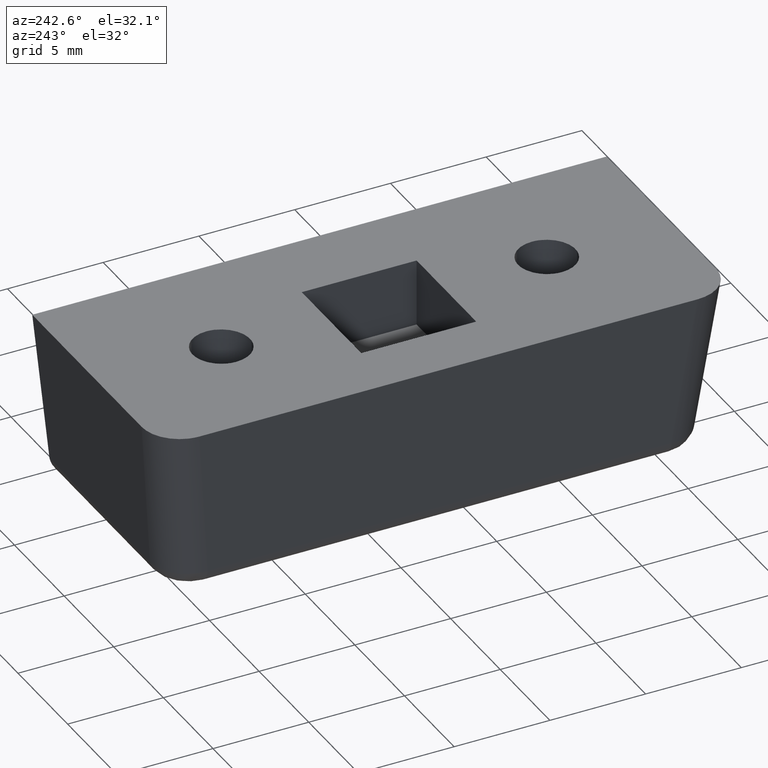
[diagram: clean part render]
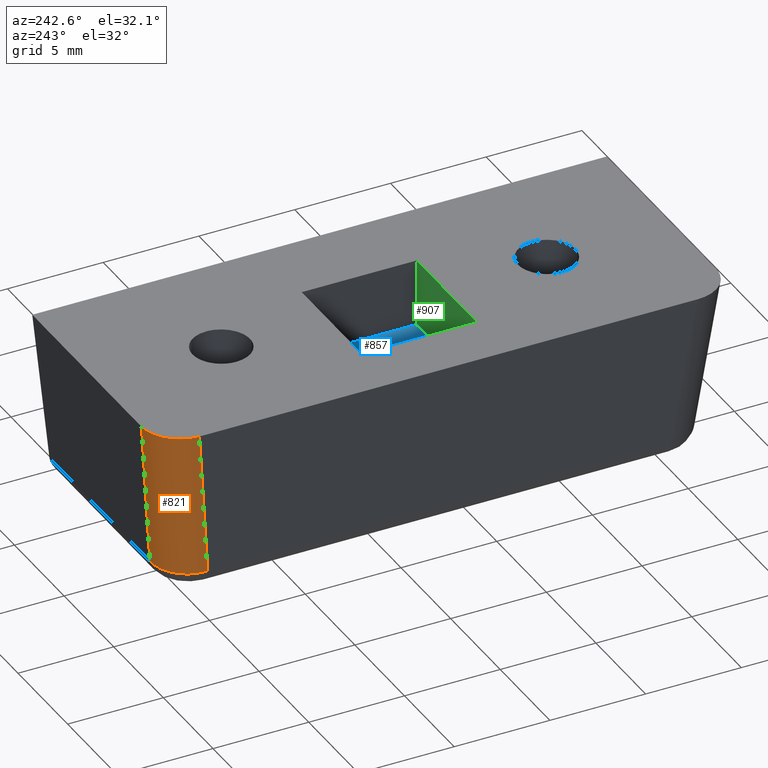
[diagram: same view with three faces highlighted in distinct colors, each labeled with its STEP entity id]
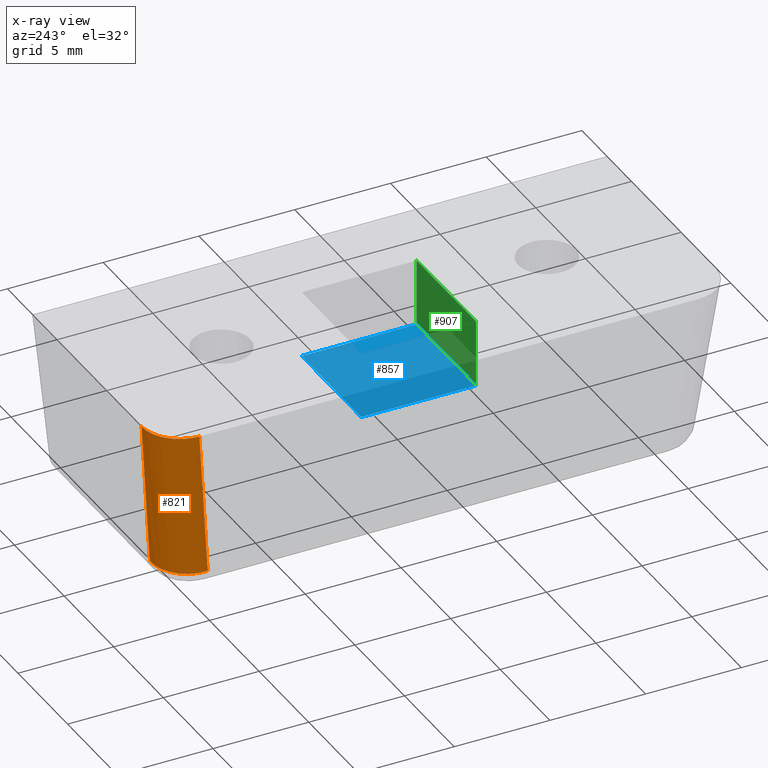
[diagram: x-ray of the same camera — body ghosted, the three highlighted faces saturated]
A machine part, auxiliary view with three faces highlighted in distinct colors.
The next image is the same camera in x-ray (body ghosted, the three faces saturated) — at least one of them is partly hidden behind the body in this view.
Their STEP definitions:

[orange] entity #821 — the highlighted face is a freeform B-spline surface patch.
#555=CARTESIAN_POINT('',(-188.098840734183990,4.111073453119674,30.389568469517549));
#556=VERTEX_POINT('',#555);
#572=CARTESIAN_POINT('',(-186.111073581873510,6.098840931261011,30.389568486864100));
#573=VERTEX_POINT('',#572);
#574=CARTESIAN_POINT('',(-186.111073581873510,6.098840931261007,30.389568486864100));
#575=CARTESIAN_POINT('',(-188.086866874126510,6.086866429303731,30.281797956467237));
#576=CARTESIAN_POINT('',(-188.098840734183990,4.111073453119674,30.389568469517549));
#584=(BOUNDED_CURVE()B_SPLINE_CURVE(2,(#574,#575,#576),.UNSPECIFIED.,.F.,.U.)CURVE()GEOMETRIC_REPRESENTATION_ITEM()QUASI_UNIFORM_CURVE()RATIONAL_B_SPLINE_CURVE((1.0,0.711405284315790,1.0))REPRESENTATION_ITEM(''));
#585=EDGE_CURVE('',#573,#556,#584,.T.);
#777=CARTESIAN_POINT('',(-186.992928063823710,7.032686419561122,38.800384987841937));
#778=CARTESIAN_POINT('',(-186.035688718804610,6.075447070058088,30.185229820438650));
#779=CARTESIAN_POINT('',(-189.123975722734800,7.062497336816977,38.560289620077825));
#780=CARTESIAN_POINT('',(-188.166736377715750,6.105257987313943,29.945134452674523));
#781=CARTESIAN_POINT('',(-189.030988865132710,4.934040512166988,38.807116666558123));
#782=CARTESIAN_POINT('',(-188.073749520113610,3.976801162663955,30.191961499154829));
#790=(BOUNDED_SURFACE()B_SPLINE_SURFACE(1,2,((#777,#779,#781),(#778,#780,#782)),.UNSPECIFIED.,.F.,.F.,.U.)B_SPLINE_SURFACE_WITH_KNOTS((2,2),(3,3),(0.0,8.720866521987663),(0.0,3.478498999687471),.UNSPECIFIED.)GEOMETRIC_REPRESENTATION_ITEM()RATIONAL_B_SPLINE_SURFACE(((1.0,0.681998360062498,1.0),(1.0,0.681998360062498,1.0)))REPRESENTATION_ITEM('')SURFACE());
#791=CARTESIAN_POINT('',(-187.012232527777510,6.999999881386110,38.500000000000000));
#792=VERTEX_POINT('',#791);
#793=CARTESIAN_POINT('',(-186.111073581873510,6.098840931261011,30.389568486864100));
#794=CARTESIAN_POINT('',(-187.012232527777510,6.999999881386110,38.500000000000000));
#795=QUASI_UNIFORM_CURVE('',1,(#793,#794),.UNSPECIFIED.,.F.,.U.);
#796=EDGE_CURVE('',#573,#792,#795,.T.);
#797=ORIENTED_EDGE('',*,*,#796,.F.);
#798=ORIENTED_EDGE('',*,*,#585,.T.);
#799=CARTESIAN_POINT('',(-189.0,5.012232409050130,38.500000000000000));
#800=VERTEX_POINT('',#799);
#801=CARTESIAN_POINT('',(-189.0,5.012232409050130,38.500000000000000));
#802=CARTESIAN_POINT('',(-188.098840734183990,4.111073453119674,30.389568469517549));
#803=QUASI_UNIFORM_CURVE('',1,(#801,#802),.UNSPECIFIED.,.F.,.U.);
#804=EDGE_CURVE('',#800,#556,#803,.T.);
#805=ORIENTED_EDGE('',*,*,#804,.F.);
#806=CARTESIAN_POINT('',(-187.012232527777510,6.999999881386110,38.500000000000000));
#807=CARTESIAN_POINT('',(-189.0,6.999999881385769,38.500000000000007));
#808=CARTESIAN_POINT('',(-189.0,5.012232409050130,38.500000000000000));
#816=(BOUNDED_CURVE()B_SPLINE_CURVE(2,(#806,#807,#808),.UNSPECIFIED.,.F.,.U.)CURVE()GEOMETRIC_REPRESENTATION_ITEM()QUASI_UNIFORM_CURVE()RATIONAL_B_SPLINE_CURVE((1.0,0.711405341221566,1.0))REPRESENTATION_ITEM(''));
#817=EDGE_CURVE('',#792,#800,#816,.T.);
#818=ORIENTED_EDGE('',*,*,#817,.F.);
#819=EDGE_LOOP('',(#797,#798,#805,#818));
#820=FACE_OUTER_BOUND('',#819,.T.);
#821=ADVANCED_FACE('',(#820),#790,.T.);

[blue] entity #857 — the highlighted face is a freeform B-spline surface patch.
#822=CARTESIAN_POINT('',(-186.299699988370800,-4.700300011629164,35.0));
#823=CARTESIAN_POINT('',(-179.700299850696610,-4.700300011629164,35.0));
#824=CARTESIAN_POINT('',(-186.299699988370800,-11.299700149303380,35.0));
#825=CARTESIAN_POINT('',(-179.700299850696610,-11.299700149303380,35.0));
#826=B_SPLINE_SURFACE_WITH_KNOTS('',1,1,((#822,#824),(#823,#825)),.UNSPECIFIED.,.F.,.F.,.U.,(2,2),(2,2),(0.0,6.599400137674213),(0.0,6.599400137674213),.UNSPECIFIED.);
#827=CARTESIAN_POINT('',(-186.0,-5.0,35.0));
#828=VERTEX_POINT('',#827);
#829=CARTESIAN_POINT('',(-180.0,-5.0,35.0));
#830=VERTEX_POINT('',#829);
#831=CARTESIAN_POINT('',(-186.0,-5.0,35.0));
#832=CARTESIAN_POINT('',(-180.0,-5.0,35.0));
#833=QUASI_UNIFORM_CURVE('',1,(#831,#832),.UNSPECIFIED.,.F.,.U.);
#834=EDGE_CURVE('',#828,#830,#833,.T.);
#835=ORIENTED_EDGE('',*,*,#834,.F.);
#836=CARTESIAN_POINT('',(-186.0,-11.0,35.0));
#837=VERTEX_POINT('',#836);
#838=CARTESIAN_POINT('',(-186.0,-11.0,35.0));
#839=CARTESIAN_POINT('',(-186.0,-5.0,35.0));
#840=QUASI_UNIFORM_CURVE('',1,(#838,#839),.UNSPECIFIED.,.F.,.U.);
#841=EDGE_CURVE('',#837,#828,#840,.T.);
#842=ORIENTED_EDGE('',*,*,#841,.F.);
#843=CARTESIAN_POINT('',(-180.0,-11.0,35.0));
#844=VERTEX_POINT('',#843);
#845=CARTESIAN_POINT('',(-180.0,-11.0,35.0));
#846=CARTESIAN_POINT('',(-186.0,-11.0,35.0));
#847=QUASI_UNIFORM_CURVE('',1,(#845,#846),.UNSPECIFIED.,.F.,.U.);
#848=EDGE_CURVE('',#844,#837,#847,.T.);
#849=ORIENTED_EDGE('',*,*,#848,.F.);
#850=CARTESIAN_POINT('',(-180.0,-5.0,35.0));
#851=CARTESIAN_POINT('',(-180.0,-11.0,35.0));
#852=QUASI_UNIFORM_CURVE('',1,(#850,#851),.UNSPECIFIED.,.F.,.U.);
#853=EDGE_CURVE('',#830,#844,#852,.T.);
#854=ORIENTED_EDGE('',*,*,#853,.F.);
#855=EDGE_LOOP('',(#835,#842,#849,#854));
#856=FACE_OUTER_BOUND('',#855,.T.);
#857=ADVANCED_FACE('',(#856),#826,.F.);

[green] entity #907 — the highlighted face is a freeform B-spline surface patch.
#836=CARTESIAN_POINT('',(-186.0,-11.0,35.0));
#837=VERTEX_POINT('',#836);
#843=CARTESIAN_POINT('',(-180.0,-11.0,35.0));
#844=VERTEX_POINT('',#843);
#845=CARTESIAN_POINT('',(-180.0,-11.0,35.0));
#846=CARTESIAN_POINT('',(-186.0,-11.0,35.0));
#847=QUASI_UNIFORM_CURVE('',1,(#845,#846),.UNSPECIFIED.,.F.,.U.);
#848=EDGE_CURVE('',#844,#837,#847,.T.);
#863=CARTESIAN_POINT('',(-186.0,-11.0,38.500000000000000));
#864=VERTEX_POINT('',#863);
#872=CARTESIAN_POINT('',(-186.0,-11.0,35.0));
#873=CARTESIAN_POINT('',(-186.0,-11.0,38.500000000000000));
#874=QUASI_UNIFORM_CURVE('',1,(#872,#873),.UNSPECIFIED.,.F.,.U.);
#875=EDGE_CURVE('',#837,#864,#874,.T.);
#886=CARTESIAN_POINT('',(-186.299699988370800,-11.0,34.825175006783681));
#887=CARTESIAN_POINT('',(-186.299699988370800,-11.0,38.674825087093637));
#888=CARTESIAN_POINT('',(-179.700299850696610,-11.0,34.825175006783681));
#889=CARTESIAN_POINT('',(-179.700299850696610,-11.0,38.674825087093637));
#890=B_SPLINE_SURFACE_WITH_KNOTS('',1,1,((#886,#888),(#887,#889)),.UNSPECIFIED.,.F.,.F.,.U.,(2,2),(2,2),(0.0,3.849650080309957),(0.0,6.599400137674213),.UNSPECIFIED.);
#891=CARTESIAN_POINT('',(-180.0,-11.0,38.500000000000000));
#892=VERTEX_POINT('',#891);
#893=CARTESIAN_POINT('',(-180.0,-11.0,38.500000000000000));
#894=CARTESIAN_POINT('',(-186.0,-11.0,38.500000000000000));
#895=QUASI_UNIFORM_CURVE('',1,(#893,#894),.UNSPECIFIED.,.F.,.U.);
#896=EDGE_CURVE('',#892,#864,#895,.T.);
#897=ORIENTED_EDGE('',*,*,#896,.F.);
#898=CARTESIAN_POINT('',(-180.0,-11.0,35.0));
#899=CARTESIAN_POINT('',(-180.0,-11.0,38.500000000000000));
#900=QUASI_UNIFORM_CURVE('',1,(#898,#899),.UNSPECIFIED.,.F.,.U.);
#901=EDGE_CURVE('',#844,#892,#900,.T.);
#902=ORIENTED_EDGE('',*,*,#901,.F.);
#903=ORIENTED_EDGE('',*,*,#848,.T.);
#904=ORIENTED_EDGE('',*,*,#875,.T.);
#905=EDGE_LOOP('',(#897,#902,#903,#904));
#906=FACE_OUTER_BOUND('',#905,.T.);
#907=ADVANCED_FACE('',(#906),#890,.T.);